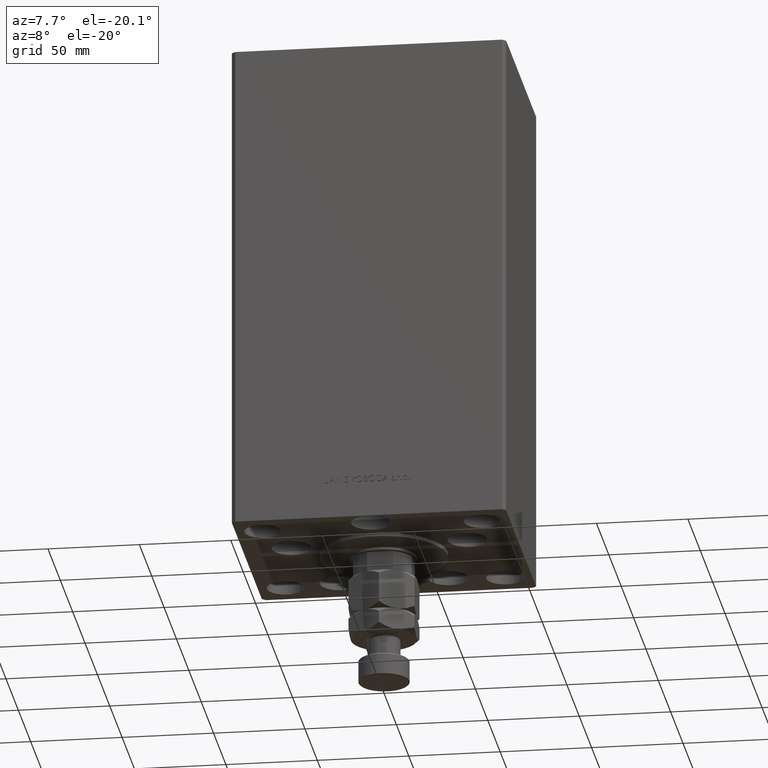
[diagram: clean part render]
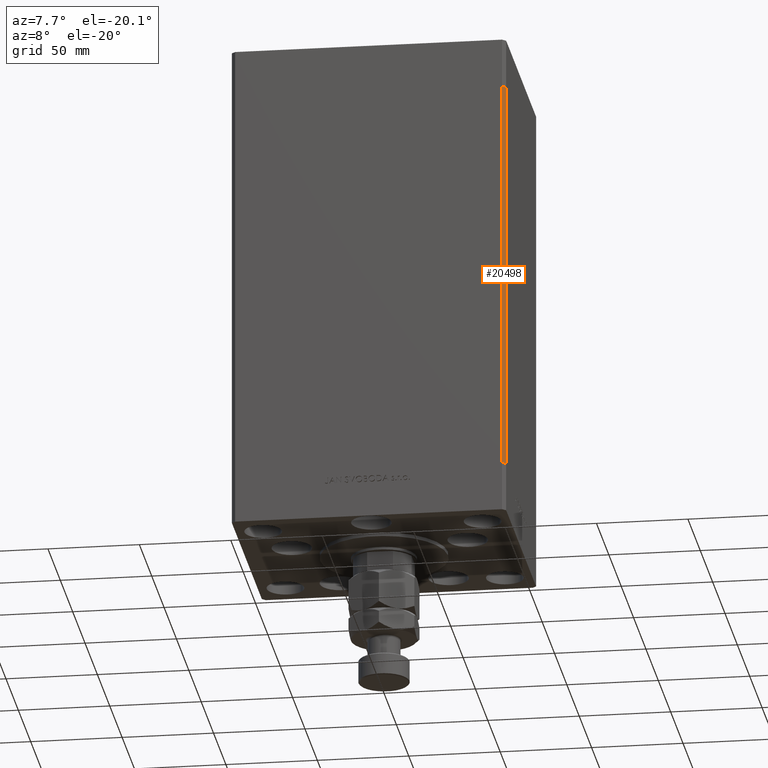
[diagram: same view with one face highlighted and labeled with its STEP entity id]
A machine part, auxiliary view. The second image highlights one B-rep face of the part: STEP entity #20498.
In plain terms, the highlighted planar face has unit normal (0.7071, -0.7071, 0).
Its self-contained STEP definition (entity closure, byte-faithful):
#559 = ORIENTED_EDGE ( 'NONE', *, *, #45381, .F. ) ;
#1075 = VERTEX_POINT ( 'NONE', #16226 ) ;
#1498 = DIRECTION ( 'NONE',  ( 0.7071067811865475727, -0.7071067811865475727, 0.000000000000000000 ) ) ;
#3079 = DIRECTION ( 'NONE',  ( -0.7071067811865474617, -0.7071067811865474617, 0.000000000000000000 ) ) ;
#3359 = DIRECTION ( 'NONE',  ( -0.7071067811865474617, -0.7071067811865474617, 0.000000000000000000 ) ) ;
#3401 = VECTOR ( 'NONE', #40805, 1000.000000000000000 ) ;
#3589 = VERTEX_POINT ( 'NONE', #34049 ) ;
#4619 = EDGE_LOOP ( 'NONE', ( #43729, #559, #10987, #40357 ) ) ;
#5987 = VECTOR ( 'NONE', #3079, 1000.000000000000114 ) ;
#6666 = CARTESIAN_POINT ( 'NONE',  ( 74.99999999999998579, -60.50000000000000000, 217.0000000000000000 ) ) ;
#8047 = CARTESIAN_POINT ( 'NONE',  ( 72.99999999999998579, -62.50000000000000000, 0.000000000000000000 ) ) ;
#8983 = VECTOR ( 'NONE', #3359, 1000.000000000000114 ) ;
#10806 = LINE ( 'NONE', #27407, #8983 ) ;
#10987 = ORIENTED_EDGE ( 'NONE', *, *, #24957, .T. ) ;
#13163 = DIRECTION ( 'NONE',  ( -0.000000000000000000, -0.000000000000000000, -1.000000000000000000 ) ) ;
#14623 = CARTESIAN_POINT ( 'NONE',  ( 72.99999999999998579, -62.50000000000000000, 217.0000000000000000 ) ) ;
#16226 = CARTESIAN_POINT ( 'NONE',  ( 72.99999999999998579, -62.50000000000000000, 217.0000000000000000 ) ) ;
#16504 = VECTOR ( 'NONE', #13163, 1000.000000000000000 ) ;
#16811 = CARTESIAN_POINT ( 'NONE',  ( 74.99999999999998579, -60.50000000000000000, 0.000000000000000000 ) ) ;
#17111 = CARTESIAN_POINT ( 'NONE',  ( 74.99999999999998579, -60.50000000000000000, 217.0000000000000000 ) ) ;
#17994 = EDGE_CURVE ( 'NONE', #1075, #26662, #48261, .T. ) ;
#20498 = ADVANCED_FACE ( 'NONE', ( #24544 ), #40170, .T. ) ;
#21098 = CARTESIAN_POINT ( 'NONE',  ( 74.99999999999998579, -60.50000000000000000, 217.0000000000000000 ) ) ;
#21853 = VERTEX_POINT ( 'NONE', #16811 ) ;
#24544 = FACE_OUTER_BOUND ( 'NONE', #4619, .T. ) ;
#24957 = EDGE_CURVE ( 'NONE', #3589, #1075, #41749, .T. ) ;
#26662 = VERTEX_POINT ( 'NONE', #8047 ) ;
#27407 = CARTESIAN_POINT ( 'NONE',  ( 74.99999999999998579, -60.50000000000000000, 0.000000000000000000 ) ) ;
#28897 = DIRECTION ( 'NONE',  ( 0.7071067811865474617, 0.7071067811865474617, 0.000000000000000000 ) ) ;
#34049 = CARTESIAN_POINT ( 'NONE',  ( 74.99999999999998579, -60.50000000000000000, 217.0000000000000000 ) ) ;
#35290 = AXIS2_PLACEMENT_3D ( 'NONE', #17111, #1498, #28897 ) ;
#40170 = PLANE ( 'NONE',  #35290 ) ;
#40357 = ORIENTED_EDGE ( 'NONE', *, *, #17994, .T. ) ;
#40559 = LINE ( 'NONE', #21098, #3401 ) ;
#40805 = DIRECTION ( 'NONE',  ( -0.000000000000000000, -0.000000000000000000, -1.000000000000000000 ) ) ;
#41068 = EDGE_CURVE ( 'NONE', #21853, #26662, #10806, .T. ) ;
#41749 = LINE ( 'NONE', #6666, #5987 ) ;
#43729 = ORIENTED_EDGE ( 'NONE', *, *, #41068, .F. ) ;
#45381 = EDGE_CURVE ( 'NONE', #3589, #21853, #40559, .T. ) ;
#48261 = LINE ( 'NONE', #14623, #16504 ) ;